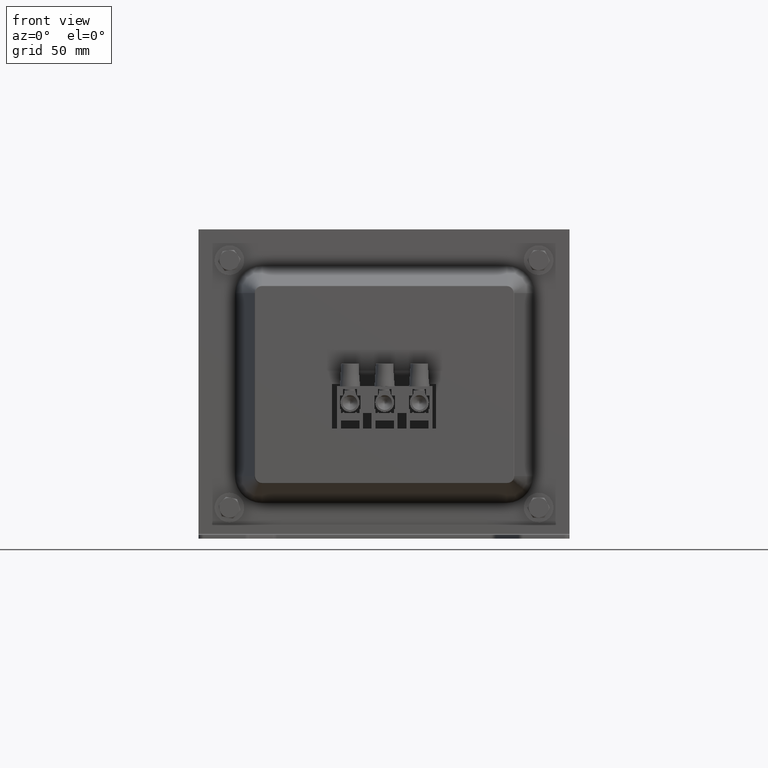
[diagram: clean part render]
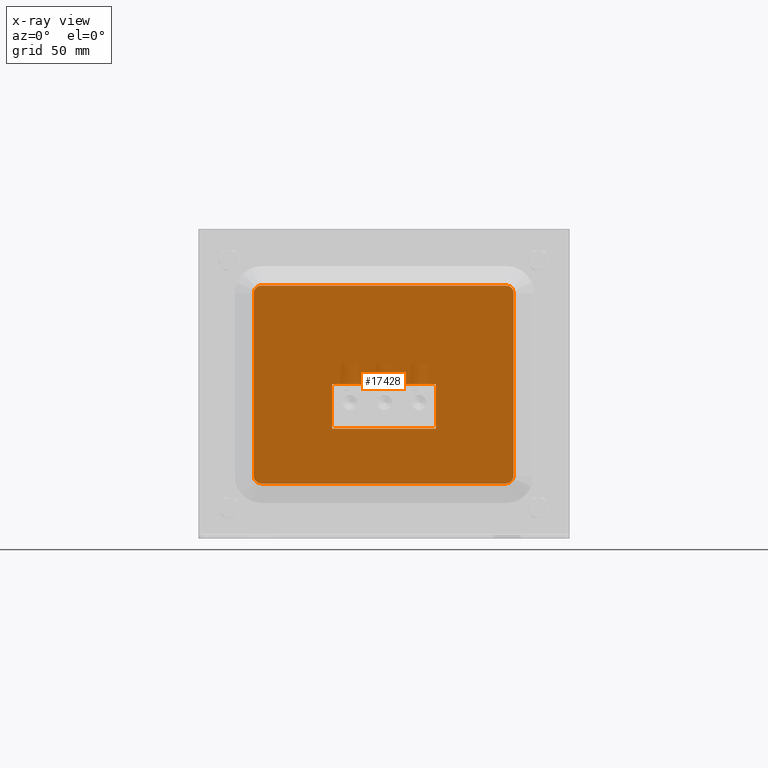
[diagram: x-ray — body ghosted, one internal face saturated and labeled with its STEP entity id]
A machine part, front view, then the same camera in x-ray: the body is ghosted and one INTERNAL B-rep face — a face not visible from any outside direction — is saturated and labeled: STEP entity #17428.
In plain terms, the highlighted planar face has unit normal (-0, 1, -0).
Its self-contained STEP definition (entity closure, byte-faithful):
#909=FACE_BOUND('',#7308,.T.);
#1582=PLANE('',#19114);
#3306=LINE('',#39717,#5112);
#3310=LINE('',#39724,#5116);
#3313=LINE('',#39730,#5119);
#3315=LINE('',#39733,#5121);
#3322=LINE('',#39765,#5128);
#3326=LINE('',#39777,#5132);
#3330=LINE('',#39789,#5136);
#3334=LINE('',#39801,#5140);
#5112=VECTOR('',#23069,10.);
#5116=VECTOR('',#23075,10.);
#5119=VECTOR('',#23080,10.);
#5121=VECTOR('',#23084,10.);
#5128=VECTOR('',#23117,10.);
#5132=VECTOR('',#23129,10.);
#5136=VECTOR('',#23141,10.);
#5140=VECTOR('',#23153,10.);
#6225=FACE_OUTER_BOUND('',#7307,.T.);
#7307=EDGE_LOOP('',(#16184,#16185,#16186,#16187,#16188,#16189,#16190,#16191));
#7308=EDGE_LOOP('',(#16192,#16193,#16194,#16195));
#7666=CIRCLE('',#19101,3.04800000000001);
#7668=CIRCLE('',#19105,3.04800000000001);
#7670=CIRCLE('',#19109,3.048);
#7672=CIRCLE('',#19113,3.04800000000001);
#9184=VERTEX_POINT('',#39714);
#9185=VERTEX_POINT('',#39716);
#9187=VERTEX_POINT('',#39722);
#9189=VERTEX_POINT('',#39728);
#9200=VERTEX_POINT('',#39762);
#9201=VERTEX_POINT('',#39764);
#9203=VERTEX_POINT('',#39770);
#9205=VERTEX_POINT('',#39776);
#9207=VERTEX_POINT('',#39782);
#9209=VERTEX_POINT('',#39788);
#9211=VERTEX_POINT('',#39794);
#9213=VERTEX_POINT('',#39800);
#11515=EDGE_CURVE('',#9185,#9184,#3306,.T.);
#11519=EDGE_CURVE('',#9184,#9187,#3310,.T.);
#11522=EDGE_CURVE('',#9187,#9189,#3313,.T.);
#11524=EDGE_CURVE('',#9189,#9185,#3315,.T.);
#11539=EDGE_CURVE('',#9201,#9200,#3322,.T.);
#11542=EDGE_CURVE('',#9203,#9201,#7666,.T.);
#11545=EDGE_CURVE('',#9205,#9203,#3326,.T.);
#11548=EDGE_CURVE('',#9207,#9205,#7668,.T.);
#11551=EDGE_CURVE('',#9209,#9207,#3330,.T.);
#11554=EDGE_CURVE('',#9211,#9209,#7670,.T.);
#11557=EDGE_CURVE('',#9213,#9211,#3334,.T.);
#11560=EDGE_CURVE('',#9200,#9213,#7672,.T.);
#16184=ORIENTED_EDGE('',*,*,#11560,.T.);
#16185=ORIENTED_EDGE('',*,*,#11557,.T.);
#16186=ORIENTED_EDGE('',*,*,#11554,.T.);
#16187=ORIENTED_EDGE('',*,*,#11551,.T.);
#16188=ORIENTED_EDGE('',*,*,#11548,.T.);
#16189=ORIENTED_EDGE('',*,*,#11545,.T.);
#16190=ORIENTED_EDGE('',*,*,#11542,.T.);
#16191=ORIENTED_EDGE('',*,*,#11539,.T.);
#16192=ORIENTED_EDGE('',*,*,#11515,.T.);
#16193=ORIENTED_EDGE('',*,*,#11519,.T.);
#16194=ORIENTED_EDGE('',*,*,#11522,.T.);
#16195=ORIENTED_EDGE('',*,*,#11524,.T.);
#17428=ADVANCED_FACE('',(#6225,#909),#1582,.F.);
#19101=AXIS2_PLACEMENT_3D('',#39771,#23123,#23124);
#19105=AXIS2_PLACEMENT_3D('',#39783,#23135,#23136);
#19109=AXIS2_PLACEMENT_3D('',#39795,#23147,#23148);
#19113=AXIS2_PLACEMENT_3D('',#39805,#23159,#23160);
#19114=AXIS2_PLACEMENT_3D('',#39806,#23161,#23162);
#23069=DIRECTION('',(1.3462451381603E-16,-1.42280478211932E-31,1.));
#23075=DIRECTION('',(1.,-1.03824744364572E-30,-2.40360039970807E-16));
#23080=DIRECTION('',(-4.5183109228036E-16,1.42280478211932E-31,-1.));
#23084=DIRECTION('',(-1.,1.03824744364572E-30,4.87076267665286E-16));
#23117=DIRECTION('',(-1.79604145373317E-16,1.06710358658949E-32,-1.));
#23123=DIRECTION('center_axis',(-7.46724607323553E-32,-1.,-1.06710358658949E-32));
#23124=DIRECTION('ref_axis',(1.,-7.46724607323553E-32,-7.96832506669592E-64));
#23129=DIRECTION('',(-1.,7.46724607323553E-32,2.40360039970807E-16));
#23135=DIRECTION('center_axis',(-7.46724607323553E-32,-1.,-1.06710358658949E-32));
#23136=DIRECTION('ref_axis',(0.,1.06710358658949E-32,-1.));
#23141=DIRECTION('',(1.79604145373317E-16,-1.06710358658949E-32,1.));
#23147=DIRECTION('center_axis',(-7.46724607323553E-32,-1.,-1.06710358658949E-32));
#23148=DIRECTION('ref_axis',(-1.,7.46724607323553E-32,7.96832506669592E-64));
#23153=DIRECTION('',(1.,-7.46724607323554E-32,-2.40360039970807E-16));
#23159=DIRECTION('center_axis',(-7.46724607323553E-32,-1.,-1.06710358658949E-32));
#23160=DIRECTION('ref_axis',(0.,-1.06710358658949E-32,1.));
#23161=DIRECTION('center_axis',(1.03824744364572E-30,1.,1.42280478211932E-31));
#23162=DIRECTION('ref_axis',(0.,-1.42280478211932E-31,1.));
#39714=CARTESIAN_POINT('',(-62.3421749656526,43.5,96.));
#39716=CARTESIAN_POINT('',(-62.3421749656526,43.5,54.));
#39717=CARTESIAN_POINT('',(-62.3421749656526,43.5,85.429456672625));
#39722=CARTESIAN_POINT('',(-44.3421749656526,43.5,96.));
#39724=CARTESIAN_POINT('',(-53.314417568443,43.5,96.));
#39728=CARTESIAN_POINT('',(-44.3421749656526,43.5,54.));
#39730=CARTESIAN_POINT('',(-44.3421749656526,43.5,64.429456672625));
#39733=CARTESIAN_POINT('',(-62.3144175684431,43.5,54.));
#39762=CARTESIAN_POINT('',(-102.286660171234,43.5,25.4069133452501));
#39764=CARTESIAN_POINT('',(-102.286660171233,43.5,124.31091334525));
#39765=CARTESIAN_POINT('',(-102.286660171233,43.5,124.31091334525));
#39770=CARTESIAN_POINT('',(-99.2386601712335,43.5,127.35891334525));
#39771=CARTESIAN_POINT('Origin',(-99.2386601712335,43.5,124.31091334525));
#39776=CARTESIAN_POINT('',(-25.3346601712335,43.5,127.35891334525));
#39777=CARTESIAN_POINT('',(-25.3346601712335,43.5,127.35891334525));
#39782=CARTESIAN_POINT('',(-22.2866601712335,43.5,124.31091334525));
#39783=CARTESIAN_POINT('Origin',(-25.3346601712335,43.5,124.31091334525));
#39788=CARTESIAN_POINT('',(-22.2866601712335,43.5,25.40691334525));
#39789=CARTESIAN_POINT('',(-22.2866601712335,43.5,25.40691334525));
#39794=CARTESIAN_POINT('',(-25.3346601712335,43.5,22.35891334525));
#39795=CARTESIAN_POINT('Origin',(-25.3346601712335,43.5,25.40691334525));
#39800=CARTESIAN_POINT('',(-99.2386601712335,43.5,22.35891334525));
#39801=CARTESIAN_POINT('',(-99.2386601712335,43.5,22.35891334525));
#39805=CARTESIAN_POINT('Origin',(-99.2386601712335,43.5,25.4069133452501));
#39806=CARTESIAN_POINT('Origin',(-62.2866601712335,43.5,74.85891334525));